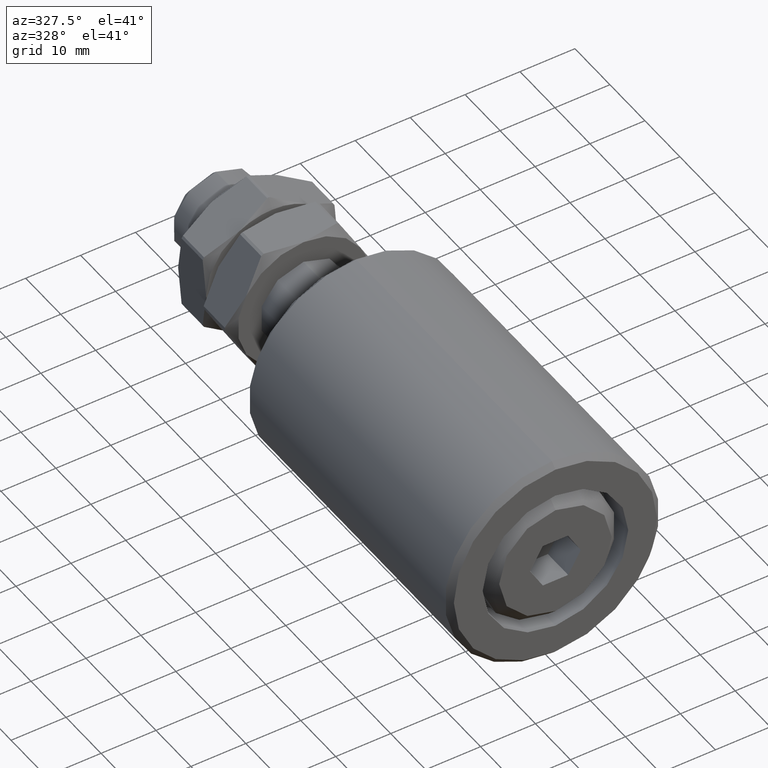
[diagram: clean part render]
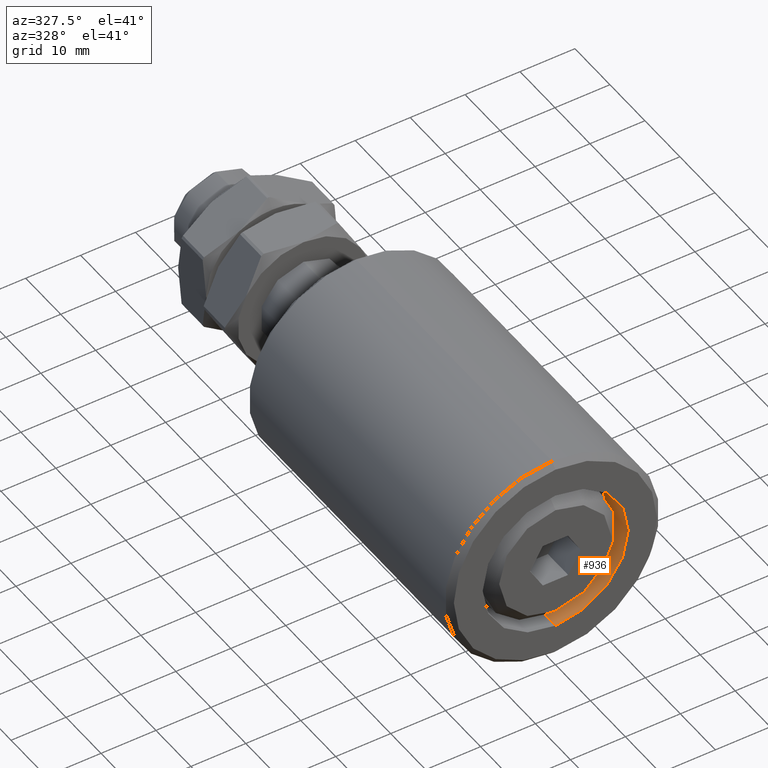
[diagram: same view with one face highlighted and labeled with its STEP entity id]
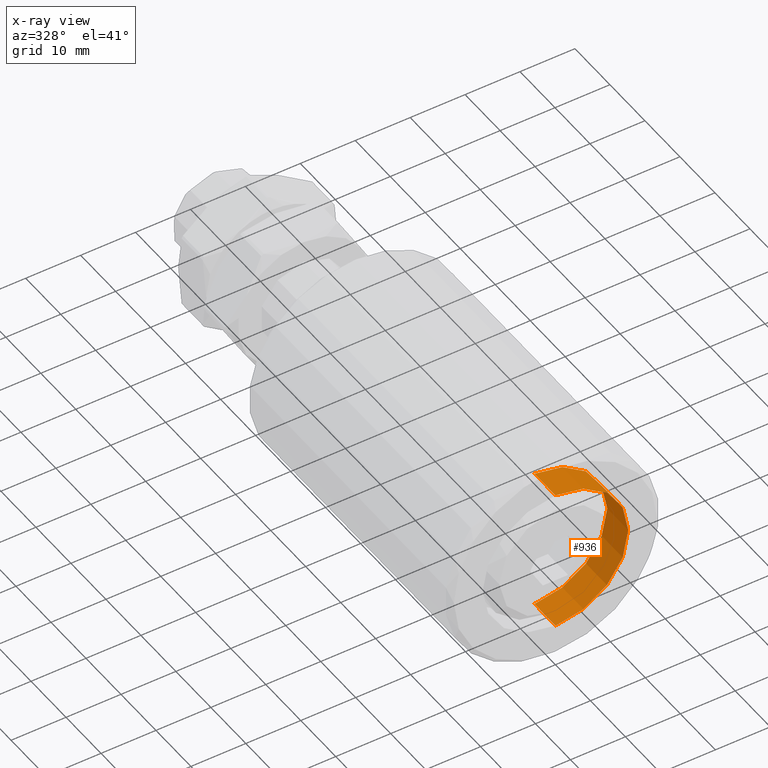
[diagram: x-ray of the same camera — body ghosted, the highlighted face saturated]
A machine part, auxiliary view. The second image highlights one B-rep face of the part: STEP entity #936.
The next image is the same camera in x-ray: the body ghosted, the highlighted face saturated — about 0% of this face is hidden behind the body in this view.
In plain terms, the highlighted cylindrical surface (partial cylindrical patch) has radius 13.25 mm, axis along (-0, -1, -0).
Its self-contained STEP definition (entity closure, byte-faithful):
#431 = AXIS2_PLACEMENT_3D ( 'NONE', #1570, #4056, #14585 ) ;
#617 = CARTESIAN_POINT ( 'NONE',  ( 0.000000000000000000, 5.999999999999999112, -13.25000000000000000 ) ) ;
#936 = ADVANCED_FACE ( 'NONE', ( #5168 ), #1450, .F. ) ;
#1390 = CARTESIAN_POINT ( 'NONE',  ( 1.622657008870242882E-15, 0.000000000000000000, 13.25000000000000000 ) ) ;
#1421 = ORIENTED_EDGE ( 'NONE', *, *, #5895, .F. ) ;
#1450 = CYLINDRICAL_SURFACE ( 'NONE', #15011, 13.25000000000000000 ) ;
#1479 = EDGE_CURVE ( 'NONE', #11177, #3112, #14641, .T. ) ;
#1570 = CARTESIAN_POINT ( 'NONE',  ( 0.000000000000000000, 0.000000000000000000, 0.000000000000000000 ) ) ;
#1877 = AXIS2_PLACEMENT_3D ( 'NONE', #4270, #9063, #3203 ) ;
#2313 = EDGE_LOOP ( 'NONE', ( #9493, #1421, #13840, #8658 ) ) ;
#2665 = CIRCLE ( 'NONE', #1877, 13.25000000000000000 ) ;
#2961 = DIRECTION ( 'NONE',  ( -0.000000000000000000, -1.000000000000000000, -0.000000000000000000 ) ) ;
#3017 = CARTESIAN_POINT ( 'NONE',  ( 0.000000000000000000, 0.000000000000000000, 0.000000000000000000 ) ) ;
#3112 = VERTEX_POINT ( 'NONE', #7739 ) ;
#3203 = DIRECTION ( 'NONE',  ( 0.000000000000000000, 0.000000000000000000, -1.000000000000000000 ) ) ;
#4056 = DIRECTION ( 'NONE',  ( -0.000000000000000000, -1.000000000000000000, -0.000000000000000000 ) ) ;
#4155 = CARTESIAN_POINT ( 'NONE',  ( 1.622657008870242882E-15, 5.999999999999999112, 13.25000000000000000 ) ) ;
#4251 = VERTEX_POINT ( 'NONE', #6183 ) ;
#4270 = CARTESIAN_POINT ( 'NONE',  ( 0.000000000000000000, 5.999999999999999112, 0.000000000000000000 ) ) ;
#4527 = VECTOR ( 'NONE', #11848, 1000.000000000000000 ) ;
#5168 = FACE_OUTER_BOUND ( 'NONE', #2313, .T. ) ;
#5895 = EDGE_CURVE ( 'NONE', #14666, #11177, #2665, .T. ) ;
#6183 = CARTESIAN_POINT ( 'NONE',  ( 0.000000000000000000, 0.000000000000000000, -13.25000000000000000 ) ) ;
#6384 = EDGE_CURVE ( 'NONE', #14666, #4251, #7687, .T. ) ;
#7053 = VECTOR ( 'NONE', #8570, 1000.000000000000000 ) ;
#7687 = LINE ( 'NONE', #13325, #4527 ) ;
#7739 = CARTESIAN_POINT ( 'NONE',  ( 1.622657008870242882E-15, 0.000000000000000000, 13.25000000000000000 ) ) ;
#8570 = DIRECTION ( 'NONE',  ( -0.000000000000000000, -1.000000000000000000, -0.000000000000000000 ) ) ;
#8658 = ORIENTED_EDGE ( 'NONE', *, *, #12460, .T. ) ;
#9063 = DIRECTION ( 'NONE',  ( -0.000000000000000000, -1.000000000000000000, -0.000000000000000000 ) ) ;
#9493 = ORIENTED_EDGE ( 'NONE', *, *, #1479, .F. ) ;
#11177 = VERTEX_POINT ( 'NONE', #4155 ) ;
#11848 = DIRECTION ( 'NONE',  ( -0.000000000000000000, -1.000000000000000000, -0.000000000000000000 ) ) ;
#12460 = EDGE_CURVE ( 'NONE', #4251, #3112, #14135, .T. ) ;
#13325 = CARTESIAN_POINT ( 'NONE',  ( 0.000000000000000000, 0.000000000000000000, -13.25000000000000000 ) ) ;
#13625 = DIRECTION ( 'NONE',  ( 0.000000000000000000, 0.000000000000000000, -1.000000000000000000 ) ) ;
#13840 = ORIENTED_EDGE ( 'NONE', *, *, #6384, .T. ) ;
#14135 = CIRCLE ( 'NONE', #431, 13.25000000000000000 ) ;
#14585 = DIRECTION ( 'NONE',  ( 0.000000000000000000, 0.000000000000000000, -1.000000000000000000 ) ) ;
#14641 = LINE ( 'NONE', #1390, #7053 ) ;
#14666 = VERTEX_POINT ( 'NONE', #617 ) ;
#15011 = AXIS2_PLACEMENT_3D ( 'NONE', #3017, #2961, #13625 ) ;